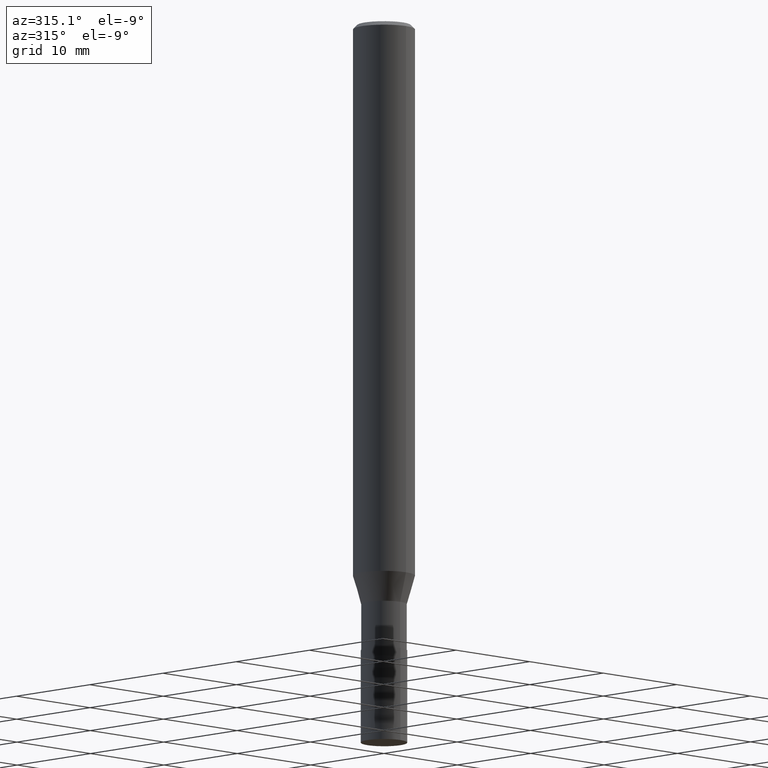
[diagram: clean part render]
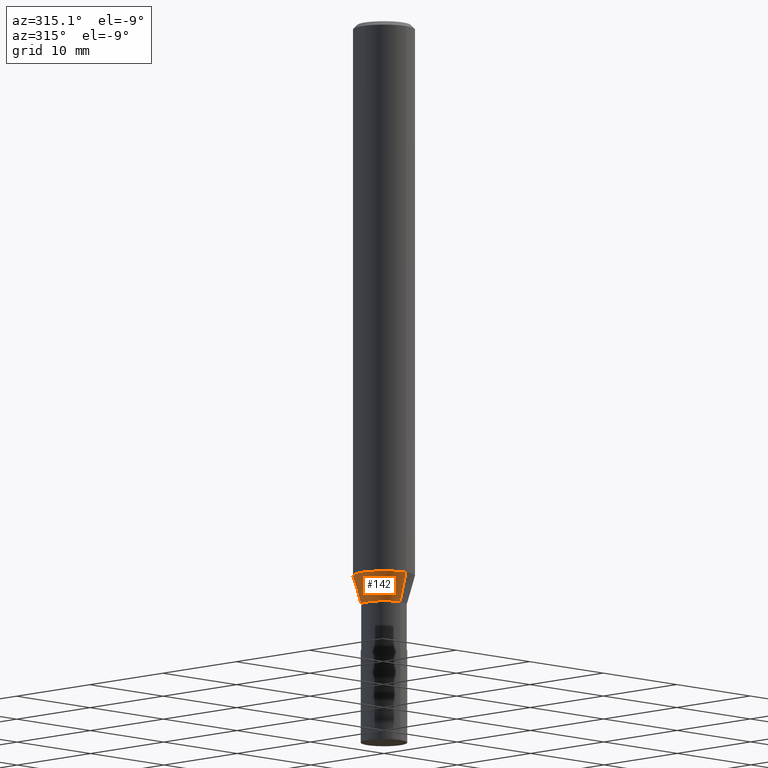
[diagram: same view with one face highlighted and labeled with its STEP entity id]
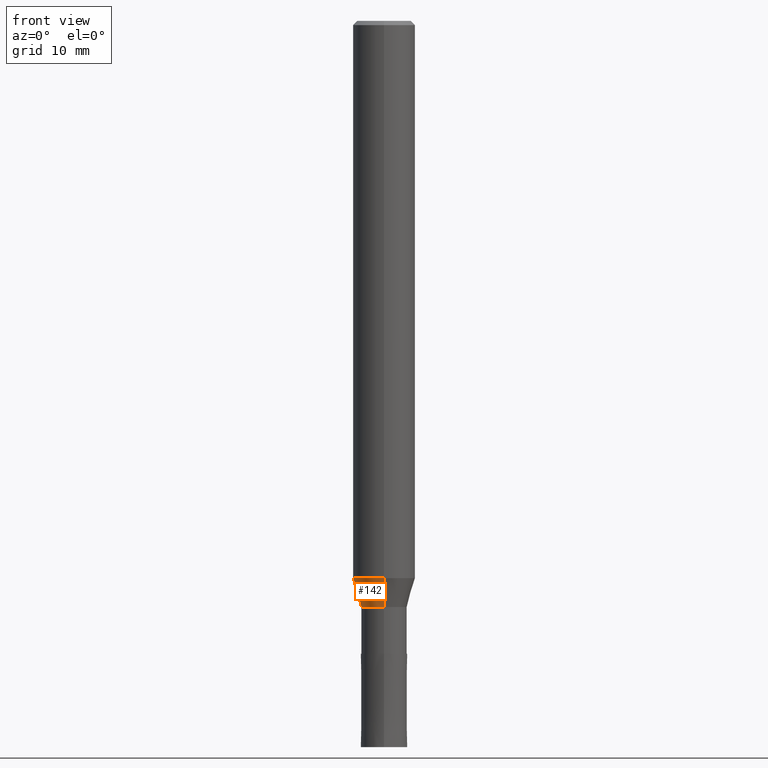
[diagram: same view with one face highlighted and labeled with its STEP entity id]
A machine part, auxiliary view. The second image highlights one B-rep face of the part: STEP entity #142.
A second angle (front view) of the same face is appended — the face is thin or edge-on in the first view.
In plain terms, the highlighted conical surface has half-angle 16 deg.
Its self-contained STEP definition (entity closure, byte-faithful):
#104=VERTEX_POINT('',#241);
#112=EDGE_CURVE('',#198,#178,#250,.T.);
#142=ADVANCED_FACE('',(#282),#283,.T.);
#158=EDGE_CURVE('',#104,#198,#301,.T.);
#166=EDGE_CURVE('',#204,#178,#311,.T.);
#178=VERTEX_POINT('',#325);
#182=EDGE_CURVE('',#204,#104,#329,.T.);
#198=VERTEX_POINT('',#349);
#204=VERTEX_POINT('',#356);
#241=CARTESIAN_POINT('',(3.67375783114944E-016,-2.99995,-53.71));
#250=LINE('',#403,#404);
#282=FACE_OUTER_BOUND('',#445,.T.);
#283=CONICAL_SURFACE('',#446,2.59995,0.279246180255813);
#301=CIRCLE('',#468,2.99995);
#311=CIRCLE('',#480,2.19995);
#325=CARTESIAN_POINT('',(0.0,2.19995,-56.5));
#329=LINE('',#504,#505);
#349=CARTESIAN_POINT('',(0.0,2.99995,-53.71));
#356=CARTESIAN_POINT('',(2.69407274809154E-016,-2.19995,-56.5));
#403=CARTESIAN_POINT('',(-3.18391528962049E-016,2.59995,-55.105));
#404=VECTOR('',#563,1.0);
#445=EDGE_LOOP('',(#596,#597,#598,#599));
#446=AXIS2_PLACEMENT_3D('',#600,#601,#602);
#468=AXIS2_PLACEMENT_3D('',#621,#622,#623);
#480=AXIS2_PLACEMENT_3D('',#641,#642,#643);
#504=CARTESIAN_POINT('',(3.18391528962049E-016,-2.59995,-55.105));
#505=VECTOR('',#665,1.0);
#563=DIRECTION('',(3.37539605616001E-017,-0.275631107549324,-0.961263487578267));
#596=ORIENTED_EDGE('',*,*,#112,.T.);
#597=ORIENTED_EDGE('',*,*,#166,.F.);
#598=ORIENTED_EDGE('',*,*,#182,.T.);
#599=ORIENTED_EDGE('',*,*,#158,.T.);
#600=CARTESIAN_POINT('',(0.0,0.0,-55.105));
#601=DIRECTION('',(-0.0,-0.0,1.0));
#602=DIRECTION('',(0.0,1.0,0.0));
#621=CARTESIAN_POINT('',(0.0,0.0,-53.71));
#622=DIRECTION('',(0.0,0.0,-1.0));
#623=DIRECTION('',(0.0,1.0,0.0));
#641=CARTESIAN_POINT('',(0.0,0.0,-56.5));
#642=DIRECTION('',(0.0,0.0,-1.0));
#643=DIRECTION('',(0.0,1.0,0.0));
#665=DIRECTION('',(3.37539605616001E-017,-0.275631107549324,0.961263487578267));